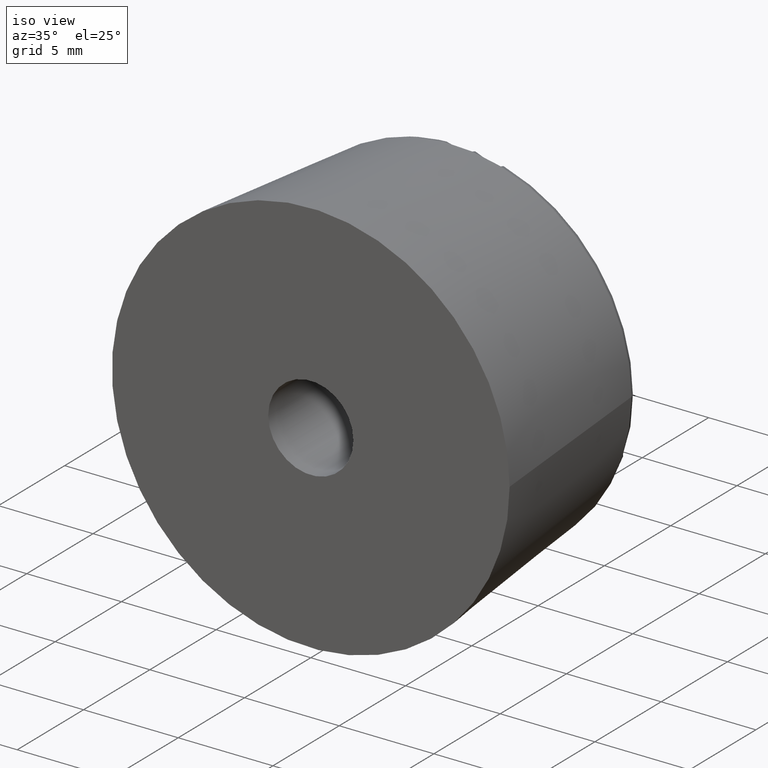
[diagram: clean part render]
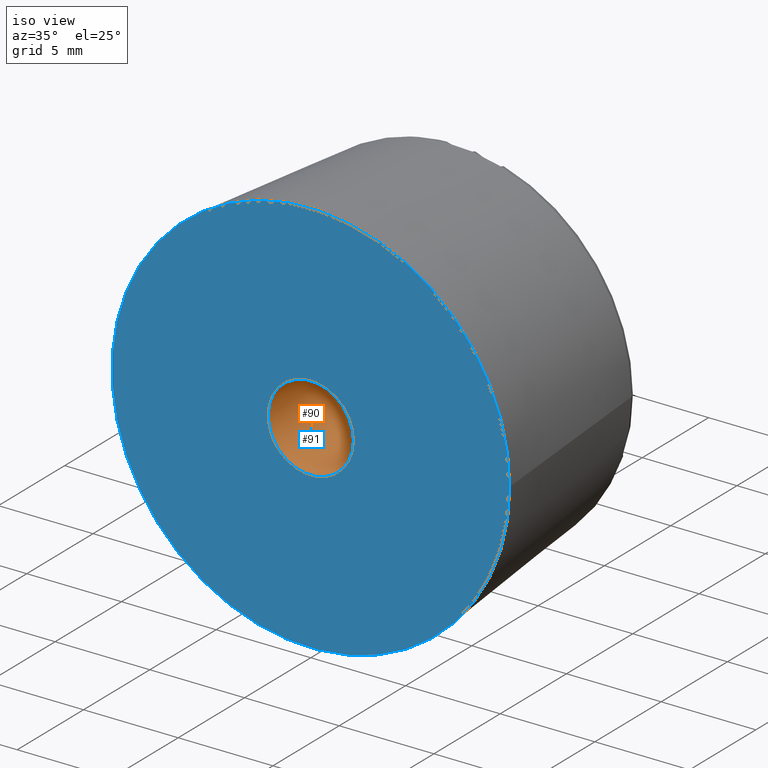
[diagram: same view with the hole feature highlighted: cylindrical wall and planar end face, labeled with their STEP entity ids]
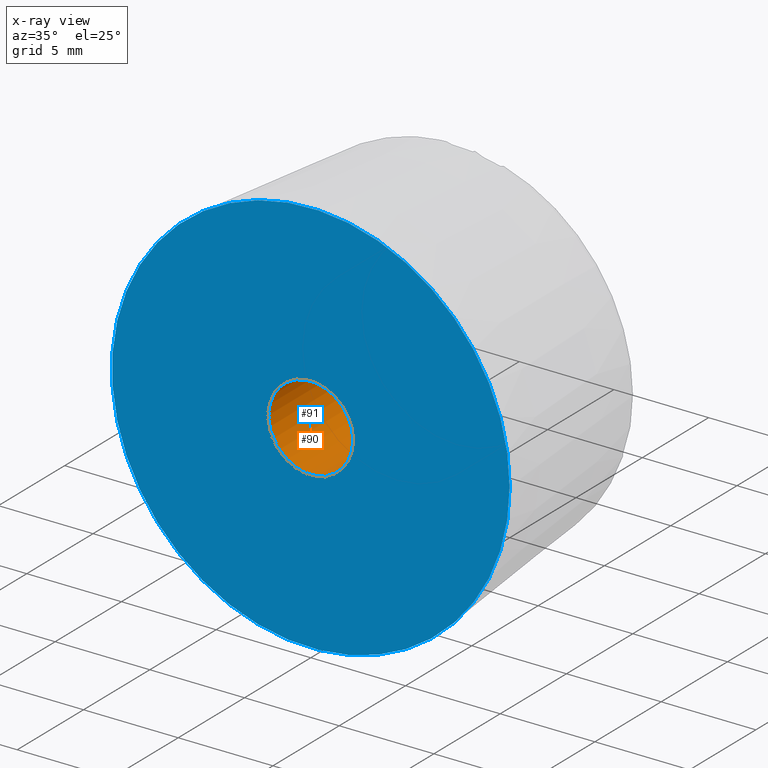
[diagram: x-ray of the same camera — body ghosted, the hole faces saturated]
A machine part, iso view. The highlighted faces form one hole feature of diameter 4.5 mm: the cylindrical wall (entity #90, orange) and its adjacent planar end face (entity #91, blue) — they share a circular edge in the B-rep.
The next image is the same camera in x-ray (body ghosted, the hole faces saturated) — the bore reads through the body.
Wall:
#16=CYLINDRICAL_SURFACE('',#105,2.25);
#26=FACE_BOUND('',#46,.T.);
#33=FACE_OUTER_BOUND('',#45,.T.);
#45=EDGE_LOOP('',(#80));
#46=EDGE_LOOP('',(#81));
#54=CIRCLE('',#103,2.25);
#55=CIRCLE('',#106,2.25);
#61=VERTEX_POINT('',#153);
#62=VERTEX_POINT('',#157);
#68=EDGE_CURVE('',#61,#61,#54,.T.);
#69=EDGE_CURVE('',#62,#62,#55,.T.);
#80=ORIENTED_EDGE('',*,*,#69,.F.);
#81=ORIENTED_EDGE('',*,*,#68,.T.);
#90=ADVANCED_FACE('',(#33,#26),#16,.F.);
#103=AXIS2_PLACEMENT_3D('',#154,#128,#129);
#105=AXIS2_PLACEMENT_3D('',#156,#132,#133);
#106=AXIS2_PLACEMENT_3D('',#158,#134,#135);
#128=DIRECTION('center_axis',(0.,1.,0.));
#129=DIRECTION('ref_axis',(-1.,0.,0.));
#132=DIRECTION('center_axis',(0.,1.,0.));
#133=DIRECTION('ref_axis',(-1.,0.,0.));
#134=DIRECTION('center_axis',(0.,1.,0.));
#135=DIRECTION('ref_axis',(-1.,0.,0.));
#153=CARTESIAN_POINT('',(2.25,6.5,-2.75545529808154E-16));
#154=CARTESIAN_POINT('Origin',(0.,6.5,0.));
#156=CARTESIAN_POINT('Origin',(0.,-22.9201752442262,0.));
#157=CARTESIAN_POINT('',(2.25,0.,-2.75545529808154E-16));
#158=CARTESIAN_POINT('Origin',(0.,0.,0.));
End face:
#20=PLANE('',#107);
#27=FACE_BOUND('',#48,.T.);
#34=FACE_OUTER_BOUND('',#47,.T.);
#47=EDGE_LOOP('',(#82));
#48=EDGE_LOOP('',(#83));
#52=CIRCLE('',#100,10.5);
#55=CIRCLE('',#106,2.25);
#59=VERTEX_POINT('',#148);
#62=VERTEX_POINT('',#157);
#66=EDGE_CURVE('',#59,#59,#52,.T.);
#69=EDGE_CURVE('',#62,#62,#55,.T.);
#82=ORIENTED_EDGE('',*,*,#66,.F.);
#83=ORIENTED_EDGE('',*,*,#69,.T.);
#91=ADVANCED_FACE('',(#34,#27),#20,.F.);
#100=AXIS2_PLACEMENT_3D('',#149,#122,#123);
#106=AXIS2_PLACEMENT_3D('',#158,#134,#135);
#107=AXIS2_PLACEMENT_3D('',#159,#136,#137);
#122=DIRECTION('center_axis',(0.,1.,0.));
#123=DIRECTION('ref_axis',(1.,0.,0.));
#134=DIRECTION('center_axis',(0.,1.,0.));
#135=DIRECTION('ref_axis',(-1.,0.,0.));
#136=DIRECTION('center_axis',(0.,1.,0.));
#137=DIRECTION('ref_axis',(0.,0.,1.));
#148=CARTESIAN_POINT('',(10.5,0.,0.));
#149=CARTESIAN_POINT('Origin',(0.,0.,0.));
#157=CARTESIAN_POINT('',(2.25,0.,-2.75545529808154E-16));
#158=CARTESIAN_POINT('Origin',(0.,0.,0.));
#159=CARTESIAN_POINT('Origin',(0.,0.,0.));